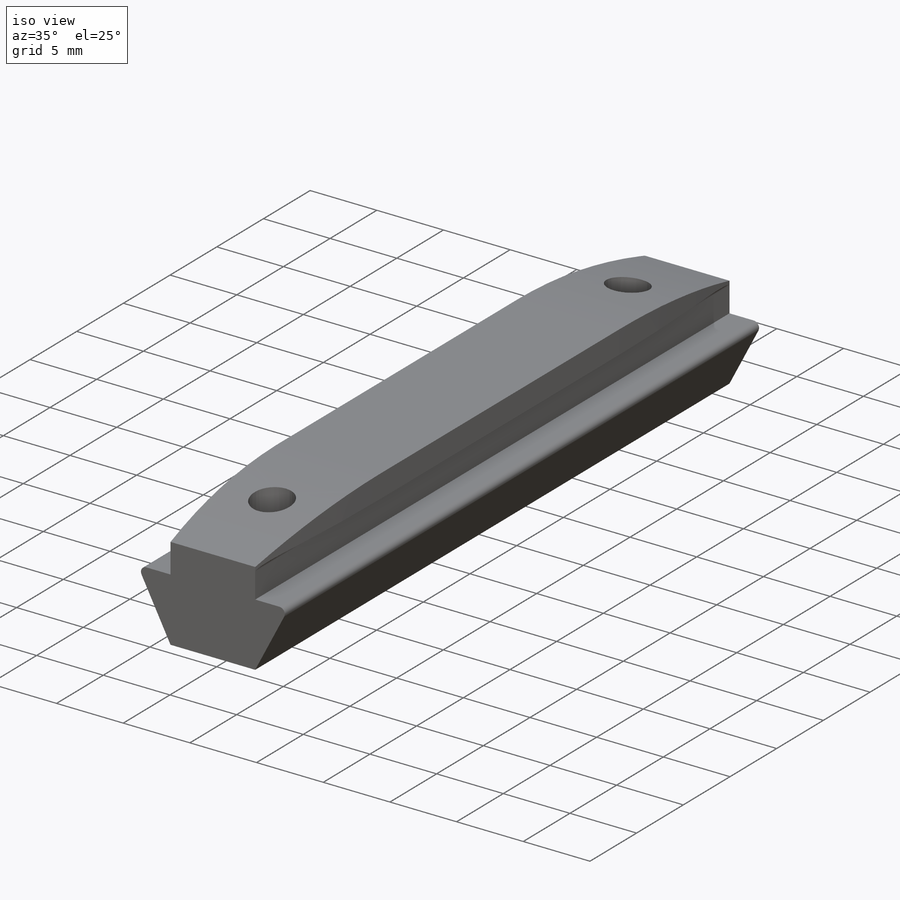
[diagram: iso view]
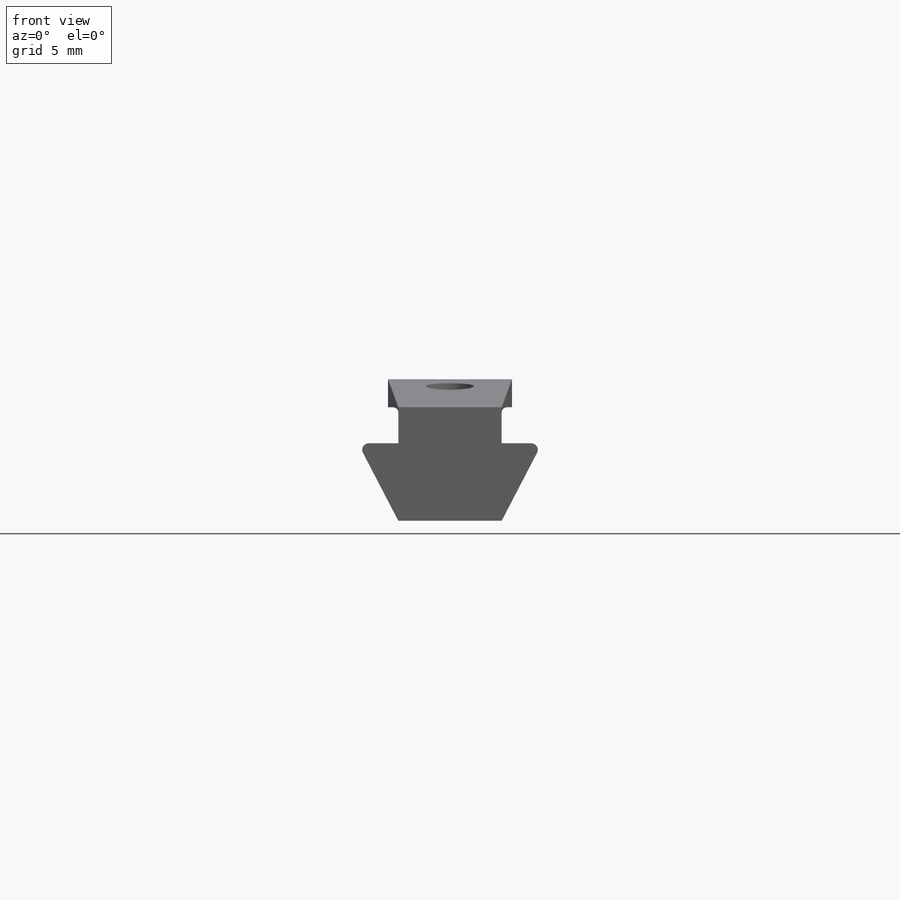
[diagram: front view]
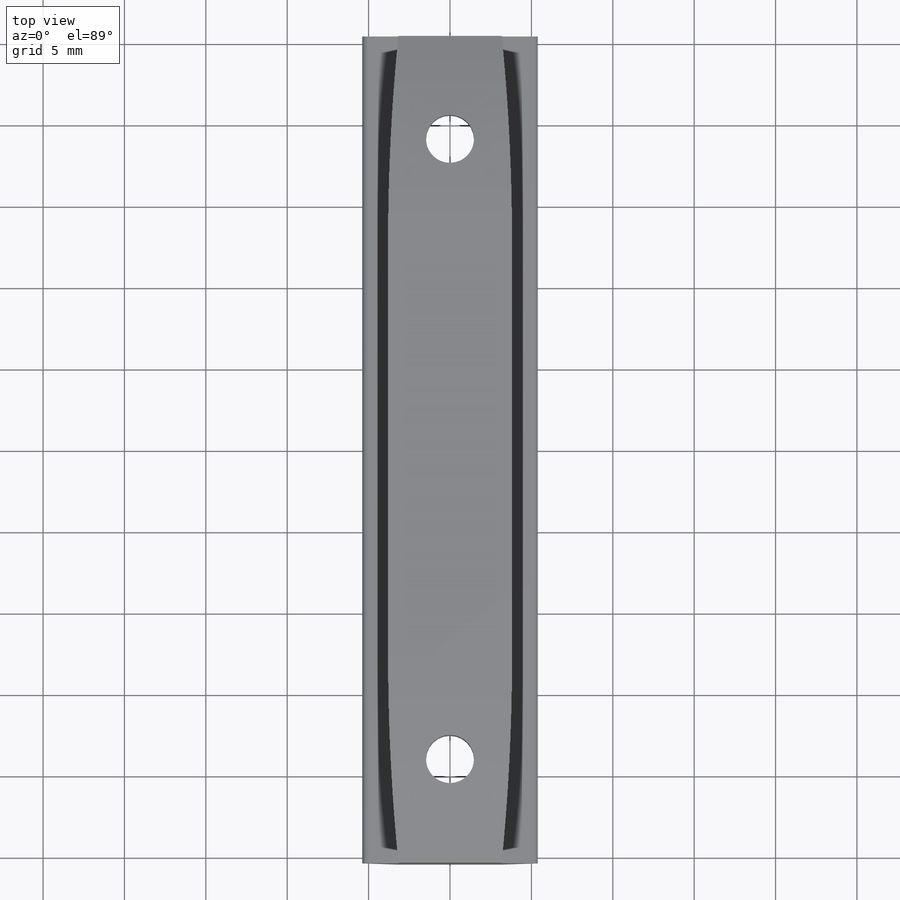
[diagram: top view]
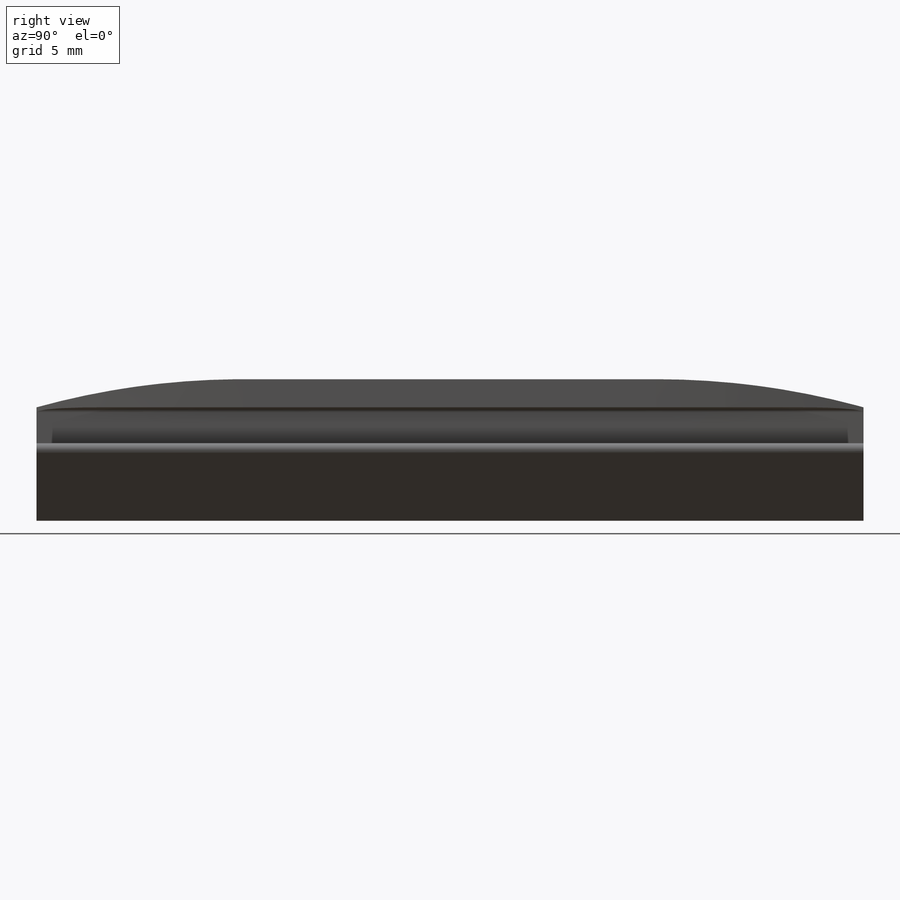
[diagram: right view]
SOLIDWORKS PART (.sldprt)
format: sldprt  version: not decoded by parser v0  size: 306,176 bytes
history: native  units: mm
features: sketch x8, cut_extrude x4, mirror x3, extrude x2, fillet x2, material x1, hole x1 (+12 scaffold rows collapsed)
feature tree (33):
  scaffold x12  (default folders/planes/origin — collapsed)
  material  "Material <not specified>"
  sketch  "Sketch1"  dims[D1=11.303mm D2=4.7625mm D3=6.35mm]
  extrude  "Boss-Extrude1"  Depth=50.8mm
  sketch  "Sketch5"  dims[D1=6.35mm D2=7.62mm D3=2.2098mm D4=3.937mm]
  extrude  "Boss-Extrude3"  Depth=50.8mm
  fillet  "Fillet1"  Radius=0.396875mm
  sketch  "Sketch3"  dims[c1.D1=~3.96875mm c1.D2=8.001mm c2.D1=~17.853313mm c2.D2=6.35mm]
  sketch  "Sketch6"  dims[D1=25.4mm]
  cut_extrude  "Cut-Extrude6"  [1 undecoded]
  cut_extrude  "Cut-Extrude7"  Depth=4.7625mm
  sketch  "Sketch10"  dims[D1=5.5372mm]
  cut_extrude  "Cut-Extrude8"  Depth=0.508mm
  mirror  "Mirror2"
  hole  "#4 Clearance Hole1"  Diameter=2.9464mm Depth=3.511135mm
  sketch  "Sketch9"
  sketch  "Sketch8"  dims[hole-wizard template sketch: 60 standard entries collapsed; hole parameters kept: c18.Thru Hole Depth=~3.511135mm]
  sketch  "Sketch11"
  cut_extrude  "Cut-Extrude9"  [1 undecoded]
  mirror  "Mirror3"
  mirror  "Mirror4"
  fillet  "Fillet3"  Radius=0.3175mm
decode coverage: 13 of 20 modeling features carry decoded parameters
note: ~ marks probable driven/reference dimensions
note: 2 parameter values undecoded
note: suppression state not decoded; provenance and decode notes live in map.json
